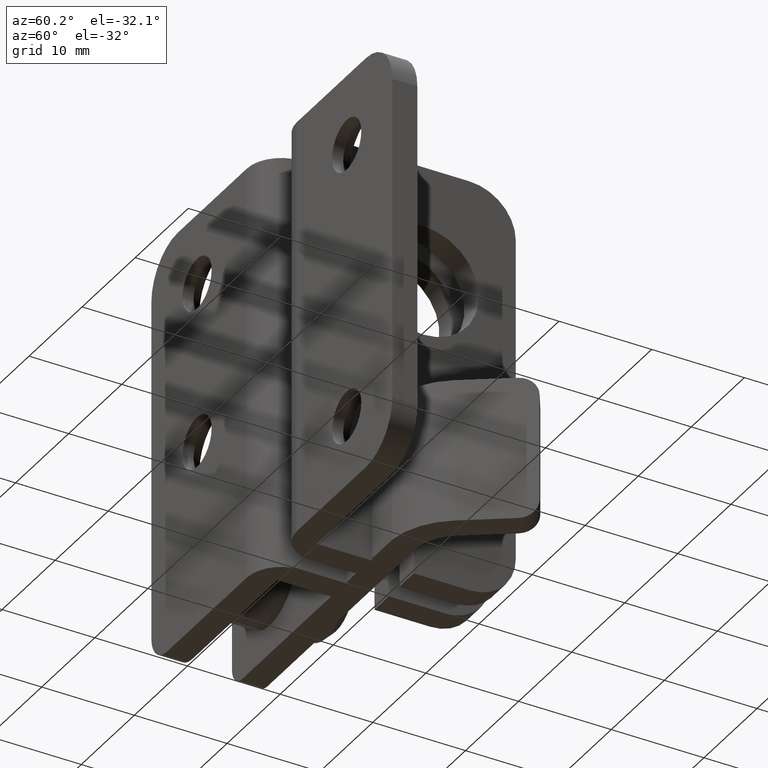
[diagram: clean part render]
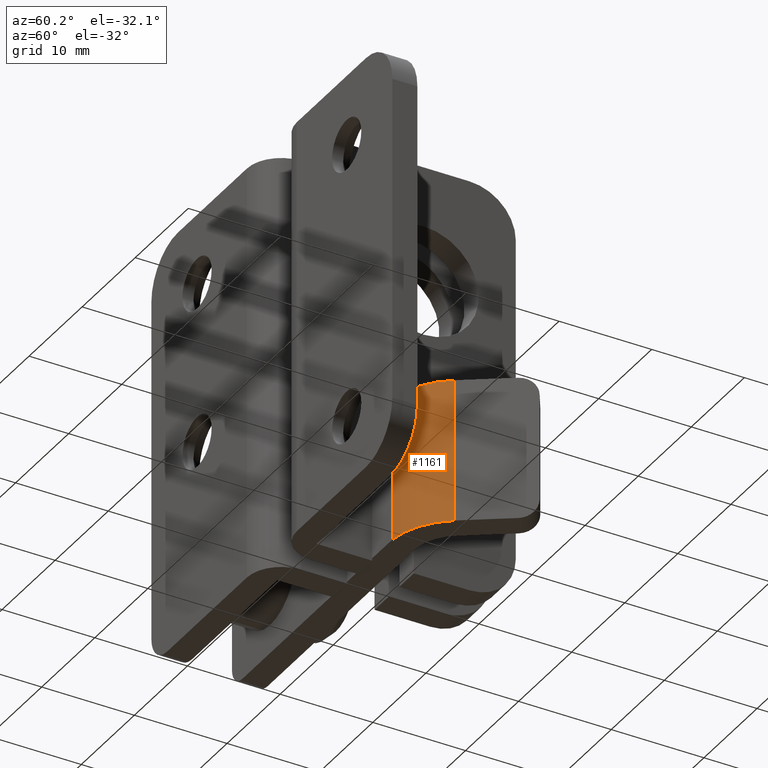
[diagram: same view with one face highlighted and labeled with its STEP entity id]
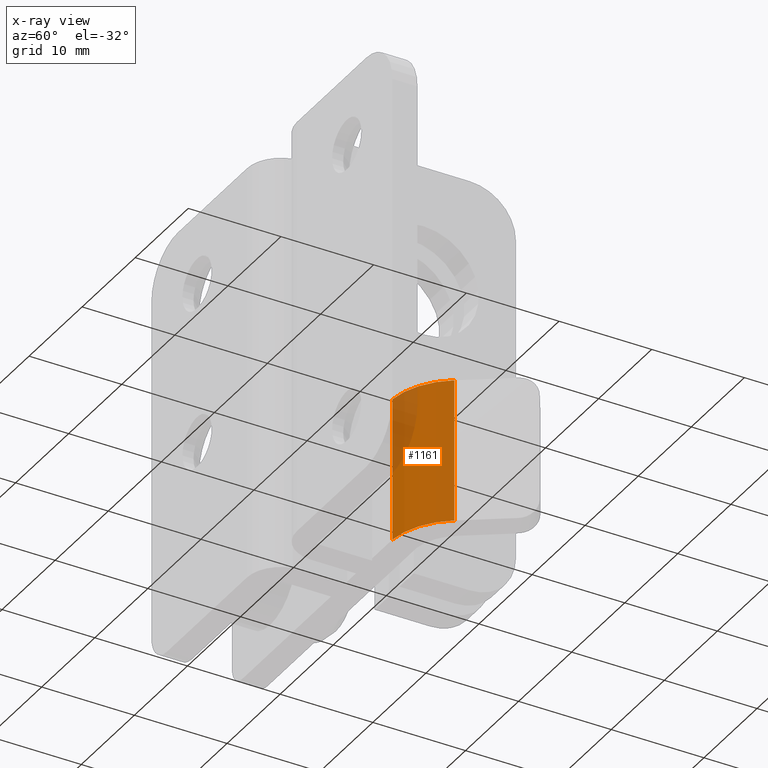
[diagram: x-ray of the same camera — body ghosted, the highlighted face saturated]
A machine part, auxiliary view. The second image highlights one B-rep face of the part: STEP entity #1161.
The next image is the same camera in x-ray: the body ghosted, the highlighted face saturated — about 17% of this face is hidden behind the body in this view.
In plain terms, the highlighted cylindrical surface (partial cylindrical patch) has radius 7.7 mm, axis along (-0, 0, -1).
Its self-contained STEP definition (entity closure, byte-faithful):
#170=FACE_OUTER_BOUND('',#267,.T.);
#267=EDGE_LOOP('',(#1043,#1044,#1045,#1046));
#345=LINE('',#1935,#435);
#359=LINE('',#1980,#449);
#435=VECTOR('',#1593,15.5);
#449=VECTOR('',#1639,15.5);
#502=CIRCLE('',#1282,7.69999999999999);
#508=CIRCLE('',#1293,7.69999999999999);
#601=VERTEX_POINT('',#1932);
#602=VERTEX_POINT('',#1934);
#605=VERTEX_POINT('',#1944);
#617=VERTEX_POINT('',#1978);
#742=EDGE_CURVE('',#601,#602,#345,.T.);
#747=EDGE_CURVE('',#602,#605,#502,.T.);
#764=EDGE_CURVE('',#617,#601,#508,.T.);
#765=EDGE_CURVE('',#617,#605,#359,.T.);
#1043=ORIENTED_EDGE('',*,*,#764,.F.);
#1044=ORIENTED_EDGE('',*,*,#765,.T.);
#1045=ORIENTED_EDGE('',*,*,#747,.F.);
#1046=ORIENTED_EDGE('',*,*,#742,.F.);
#1098=CYLINDRICAL_SURFACE('',#1292,7.69999999999999);
#1161=ADVANCED_FACE('',(#170),#1098,.T.);
#1282=AXIS2_PLACEMENT_3D('',#1945,#1604,#1605);
#1292=AXIS2_PLACEMENT_3D('',#1977,#1635,#1636);
#1293=AXIS2_PLACEMENT_3D('',#1979,#1637,#1638);
#1593=DIRECTION('',(0.,0.,-1.));
#1604=DIRECTION('center_axis',(0.,0.,-1.));
#1605=DIRECTION('ref_axis',(0.0727272727272729,-0.997351865592907,0.));
#1635=DIRECTION('center_axis',(0.,0.,-1.));
#1636=DIRECTION('ref_axis',(0.0727272727272729,-0.997351865592907,0.));
#1637=DIRECTION('center_axis',(0.,0.,1.));
#1638=DIRECTION('ref_axis',(0.0727272727272729,-0.997351865592907,0.));
#1639=DIRECTION('',(0.,0.,-1.));
#1932=CARTESIAN_POINT('',(36.0204645602652,3.36919500039002,0.));
#1934=CARTESIAN_POINT('',(36.0204645602652,3.36919500039002,-15.5));
#1935=CARTESIAN_POINT('',(36.0204645602652,3.36919500039002,0.));
#1944=CARTESIAN_POINT('',(30.2,0.,-15.5));
#1945=CARTESIAN_POINT('Origin',(29.64,7.67960936506538,-15.5));
#1977=CARTESIAN_POINT('Origin',(29.64,7.67960936506538,0.));
#1978=CARTESIAN_POINT('',(30.2,0.,0.));
#1979=CARTESIAN_POINT('Origin',(29.64,7.67960936506538,0.));
#1980=CARTESIAN_POINT('',(30.2,0.,0.));